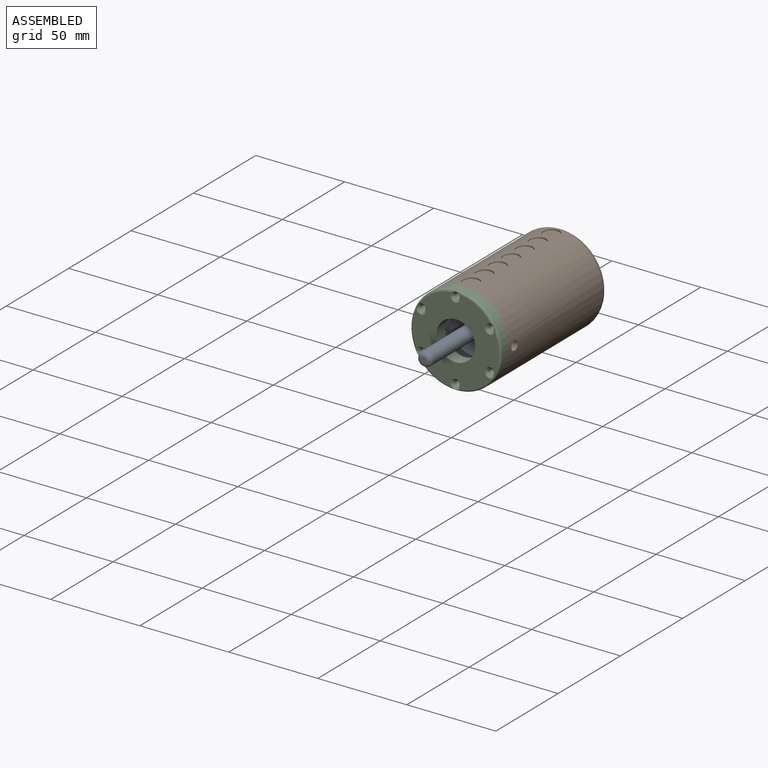
[diagram: assembled view]
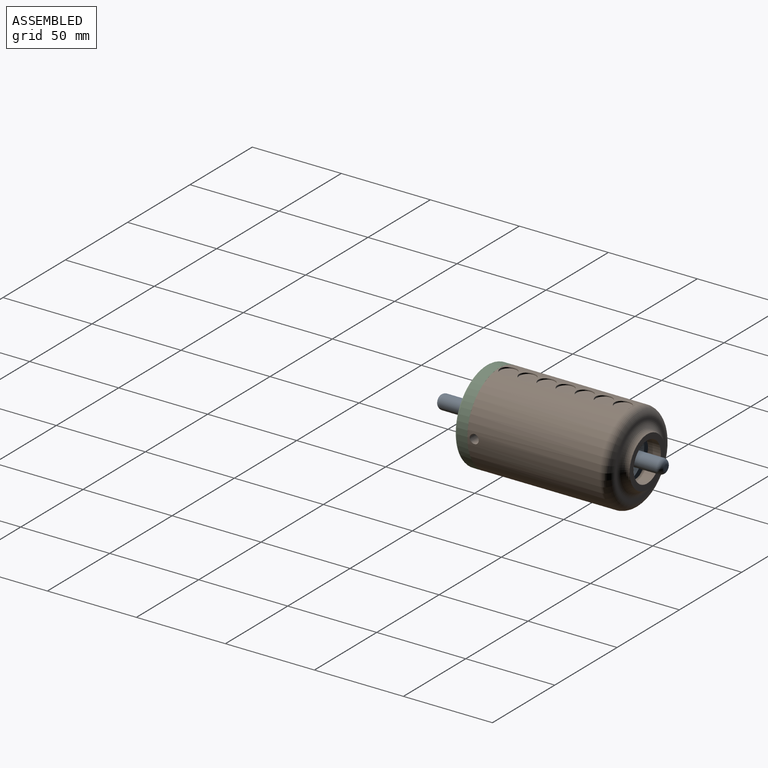
[diagram: assembled view, second angle]
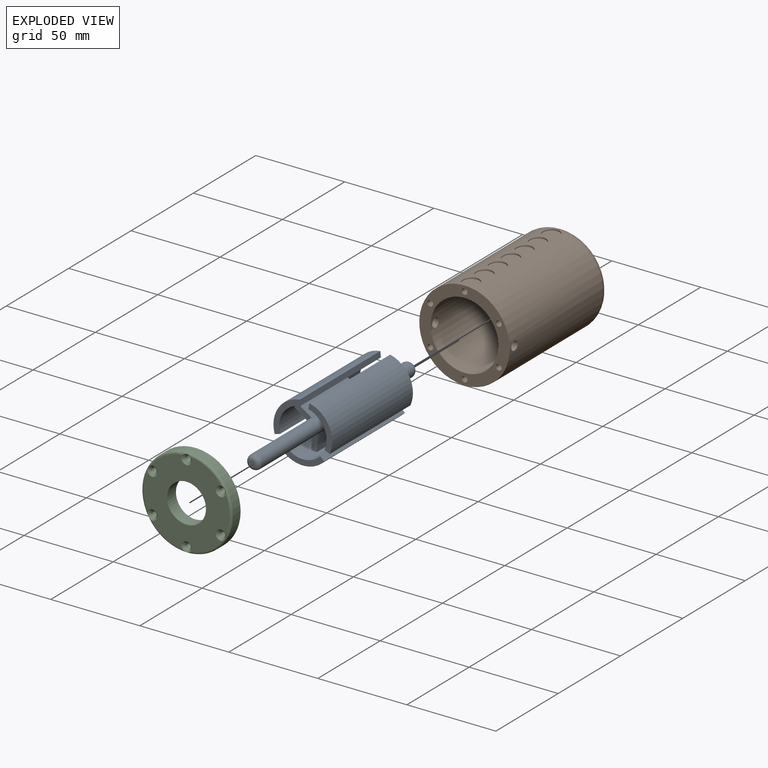
[diagram: exploded view]
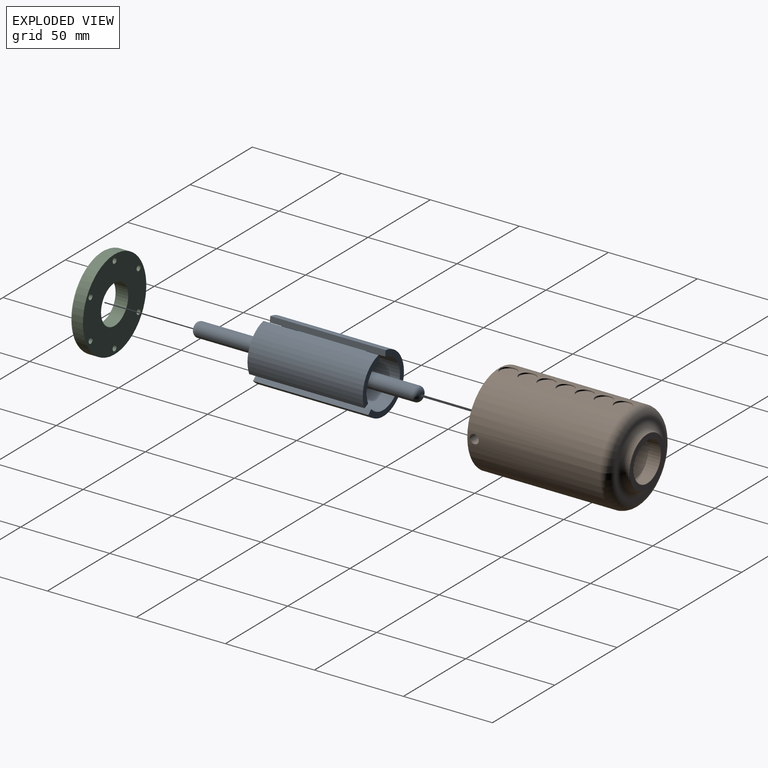
[diagram: exploded view, second angle]
ASSEMBLY  parts=3 mates=2
PART A: 35 faces, bbox 33x127x32.8 mm
  f0: plane 64.77x2.44mm, normal (0.64,0,-0.77), area 205.6mm2, adj f1,f3,f25,f31
  f1: cylinder r=16.51mm len=64.77mm, axis (0,1,0), area 1877mm2, adj f0,f2,f25,f31
  f2: plane 64.77x2.44mm, normal (-0.64,0,-0.77), area 205.6mm2, adj f1,f3,f25,f31
  f3: cylinder r=13.33mm len=64.77mm, axis (0,1,0), area 1394.8mm2, adj f0,f2,f14,f16,f19,f20,f25,f31
  f4: plane 64.77x2.98mm, normal (0.35,0,0.94), area 205.6mm2, adj f5,f7,f27,f30
  f5: cylinder r=16.51mm len=64.77mm, axis (0,1,0), area 1877mm2, adj f4,f6,f27,f30
  f6: plane 64.77x3.13mm, normal (0.99,0,-0.17), area 205.6mm2, adj f5,f7,f27,f30
  f7: cylinder r=13.33mm len=64.77mm, axis (0,1,0), area 1394.8mm2, adj f4,f6,f12,f15,f21,f22,f27,f30
  f8: cylinder r=13.33mm len=64.77mm, axis (0,1,0), area 1394.8mm2, adj f9,f11,f13,f17,f18,f24,f26,f29
  f9: plane 64.77x3.13mm, normal (-0.99,0,-0.17), area 205.6mm2, adj f8,f10,f26,f29
  f10: cylinder r=16.51mm len=64.77mm, axis (0,1,0), area 1877mm2, adj f9,f11,f26,f29
  f11: plane 64.77x2.98mm, normal (-0.35,0,0.94), area 205.6mm2, adj f8,f10,f26,f29
  f12: plane 9.87x7.53mm, normal (0,1,0), area 29.9mm2, adj f7,f21,f22,f23
  f13: plane 9.87x7.53mm, normal (0,1,0), area 29.9mm2, adj f8,f18,f23,f24
  f14: plane 9.66x3.18mm, normal (0,-1,0), area 29.9mm2, adj f3,f19,f20,f23
  f15: plane 9.87x7.53mm, normal (0,-1,0), area 29.9mm2, adj f7,f21,f22,f23
  f16: plane 9.66x3.18mm, normal (0,1,0), area 29.9mm2, adj f3,f19,f20,f23
  f17: plane 9.87x7.53mm, normal (0,-1,0), area 29.9mm2, adj f8,f18,f23,f24
  f18: plane 38.1x8.29mm, normal (0.5,0,0.87), area 364.6mm2, adj f8,f13,f17,f23
  f19: plane 38.1x9.57mm, normal (1,0,0), area 364.6mm2, adj f3,f14,f16,f23
  f20: plane 38.1x9.57mm, normal (-1,0,0), area 364.6mm2, adj f3,f14,f16,f23
  f21: plane 38.1x8.29mm, normal (-0.5,0,0.87), area 364.6mm2, adj f7,f12,f15,f23
  f22: plane 38.1x8.29mm, normal (0.5,0,-0.87), area 364.6mm2, adj f7,f12,f15,f23
  f23: cylinder r=4mm len=121.92mm, axis (0,1,0), area 2691mm2, adj f12,f13,f14,f15,f16,f17,f18,f19
  f24: plane 38.1x8.29mm, normal (-0.5,0,-0.87), area 364.6mm2, adj f8,f13,f17,f23
  f25: plane 25.4x7.99mm, normal (0,-1,0), area 83.2mm2, adj f0,f1,f2,f3
  f26: plane 22x14.26mm, normal (0,-1,0), area 83.2mm2, adj f8,f9,f10,f11
  f27: plane 22x14.26mm, normal (0,-1,0), area 83.2mm2, adj f4,f5,f6,f7
  f28: plane 2.92x2.92mm, normal (0,-1,0), area 6.7mm2, adj f34
  f29: plane 22x14.26mm, normal (0,1,0), area 83.2mm2, adj f8,f9,f10,f11
  f30: plane 22x14.26mm, normal (0,1,0), area 83.2mm2, adj f4,f5,f6,f7
  f31: plane 25.4x7.99mm, normal (0,1,0), area 83.2mm2, adj f0,f1,f2,f3
  f32: plane 2.92x2.92mm, normal (0,1,0), area 6.7mm2, adj f33
  f33: torus R=1.46mm, axis (0,1,0), area 77.1mm2, adj f23,f32
  f34: torus R=1.46mm, axis (0,-1,0), area 77.1mm2, adj f23,f28
PART B: 51 faces, bbox 55x84.5x55 mm
  f0: cylinder r=25.4mm len=74.3mm, axis (0,-1,0), area 10862.1mm2, adj f6,f8,f21,f23,f25,f27,f29,f31
  f1: plane 38.1x38.1mm, normal (0,-1,0), area 765.3mm2, adj f2,f5
  f2: cylinder r=10.92mm len=21.84mm, axis (0,1,0), area 488.1mm2, adj f1,f3
  f3: plane 28.19x28.19mm, normal (0,1,0), area 249.6mm2, adj f2,f7
  f4: plane 40.64x40.64mm, normal (0,1,0), area 157.5mm2, adj f7,f8
  f5: cylinder r=19.05mm len=76.2mm, axis (0,1,0), area 9080.1mm2, adj f1,f6,f49,f50
  f6: plane 50.8x50.8mm, normal (0,-1,0), area 839.2mm2, adj f0,f5,f9,f11,f13,f15,f17,f19
  f7: torus R=19.05mm, axis (0,-1,0), area 691.3mm2, adj f3,f4
  f8: torus R=20.32mm, axis (0,-1,0), area 1180.9mm2, adj f0,f4
  f9: cylinder r=1.59mm len=18.29mm, axis (0,-1,0), area 182.4mm2, adj f6,f10
  f10: plane 3.18x3.18mm, normal (0,-1,0), area 7.9mm2, adj f9
  f11: cylinder r=1.59mm len=18.29mm, axis (0,-1,0), area 182.4mm2, adj f6,f12
  f12: plane 3.18x3.18mm, normal (0,-1,0), area 7.9mm2, adj f11
  f13: cylinder r=1.59mm len=18.29mm, axis (0,-1,0), area 182.4mm2, adj f6,f14
  f14: plane 3.18x3.18mm, normal (0,-1,0), area 7.9mm2, adj f13
  f15: cylinder r=1.59mm len=18.29mm, axis (0,-1,0), area 182.4mm2, adj f6,f16
  f16: plane 3.18x3.18mm, normal (0,-1,0), area 7.9mm2, adj f15
  f17: cylinder r=1.59mm len=18.29mm, axis (0,-1,0), area 182.4mm2, adj f6,f18
  f18: plane 3.18x3.18mm, normal (0,-1,0), area 7.9mm2, adj f17
  f19: cylinder r=1.59mm len=18.29mm, axis (0,-1,0), area 182.4mm2, adj f6,f20
  f20: plane 3.18x3.18mm, normal (0,-1,0), area 7.9mm2, adj f19
  f21: cylinder r=4.65mm len=9.29mm, axis (0,0,1), area 20.5mm2, adj f0,f22
  f22: plane 9.29x9.29mm, normal (0,0,1), area 67.8mm2, adj f21
  f23: cylinder r=4.65mm len=9.29mm, axis (0,0,1), area 20.5mm2, adj f0,f24
  f24: plane 9.29x9.29mm, normal (0,0,1), area 67.8mm2, adj f23
  f25: cylinder r=4.65mm len=9.29mm, axis (0,0,1), area 20.5mm2, adj f0,f26
  f26: plane 9.29x9.29mm, normal (0,0,1), area 67.8mm2, adj f25
  f27: cylinder r=4.65mm len=9.29mm, axis (0,0,1), area 20.5mm2, adj f0,f28
  f28: plane 9.29x9.29mm, normal (0,0,1), area 67.8mm2, adj f27
  f29: cylinder r=4.65mm len=9.29mm, axis (0,0,1), area 20.5mm2, adj f0,f30
  f30: plane 9.29x9.29mm, normal (0,0,1), area 67.8mm2, adj f29
  f31: cylinder r=4.65mm len=9.29mm, axis (0,0,1), area 20.5mm2, adj f0,f32
  f32: plane 9.29x9.29mm, normal (0,0,1), area 67.8mm2, adj f31
  f33: cylinder r=4.65mm len=9.29mm, axis (0,0,1), area 20.5mm2, adj f0,f34
  f34: plane 9.29x9.29mm, normal (0,0,1), area 67.8mm2, adj f33
  f35: cylinder r=4.65mm len=9.29mm, axis (0,0,-1), area 20.5mm2, adj f0,f36
  f36: plane 9.29x9.29mm, normal (0,0,-1), area 67.8mm2, adj f35
  f37: cylinder r=4.65mm len=9.29mm, axis (0,0,-1), area 20.5mm2, adj f0,f38
  f38: plane 9.29x9.29mm, normal (0,0,-1), area 67.8mm2, adj f37
  f39: cylinder r=4.65mm len=9.29mm, axis (0,0,-1), area 20.5mm2, adj f0,f40
  f40: plane 9.29x9.29mm, normal (0,0,-1), area 67.8mm2, adj f39
  f41: cylinder r=4.65mm len=9.29mm, axis (0,0,-1), area 20.5mm2, adj f0,f42
  f42: plane 9.29x9.29mm, normal (0,0,-1), area 67.8mm2, adj f41
  f43: cylinder r=4.65mm len=9.29mm, axis (0,0,-1), area 20.5mm2, adj f0,f44
  f44: plane 9.29x9.29mm, normal (0,0,-1), area 67.8mm2, adj f43
  f45: cylinder r=4.65mm len=9.29mm, axis (0,0,-1), area 20.5mm2, adj f0,f46
  f46: plane 9.29x9.29mm, normal (0,0,-1), area 67.8mm2, adj f45
  f47: cylinder r=4.65mm len=9.29mm, axis (0,0,-1), area 20.5mm2, adj f0,f48
  f48: plane 9.29x9.29mm, normal (0,0,-1), area 67.8mm2, adj f47
  f49: cylinder r=2.54mm len=6.52mm, axis (1,0,0), area 101.7mm2, adj f0,f5
  f50: cylinder r=2.54mm len=6.52mm, axis (1,0,0), area 101.7mm2, adj f0,f5
PART C: 17 faces, bbox 55x7.1x55 mm
  f0: cylinder r=25.4mm len=50.8mm, axis (0,1,0), area 932.3mm2, adj f3,f16
  f1: cylinder r=10.92mm len=21.84mm, axis (0,1,0), area 488.1mm2, adj f2,f3
  f2: plane 48.26x48.06mm, normal (0,-1,0), area 1318.3mm2, adj f1,f10,f11,f12,f13,f14,f15,f16
  f3: plane 50.8x50.8mm, normal (0,1,0), area 1604.6mm2, adj f0,f1,f4,f5,f6,f7,f8,f9
  f4: cylinder r=1.59mm len=5.84mm, axis (0,-1,0), area 58.3mm2, adj f3,f15
  f5: cylinder r=1.59mm len=5.84mm, axis (0,-1,0), area 58.3mm2, adj f3,f10
  f6: cylinder r=1.59mm len=5.84mm, axis (0,-1,0), area 58.3mm2, adj f3,f11
  f7: cylinder r=1.59mm len=5.84mm, axis (0,-1,0), area 58.3mm2, adj f3,f12
  f8: cylinder r=1.59mm len=5.84mm, axis (0,-1,0), area 58.3mm2, adj f3,f13
  f9: cylinder r=1.59mm len=5.84mm, axis (0,-1,0), area 58.3mm2, adj f3,f14
  f10: cone r=1.59mm half-angle=45deg, axis (0,-1,0), area 24.2mm2, adj f2,f5,f16
  f11: cone r=1.59mm half-angle=45deg, axis (0,-1,0), area 24.3mm2, adj f2,f6,f16
  f12: cone r=1.59mm half-angle=45deg, axis (0,-1,0), area 24.2mm2, adj f2,f7,f16
  f13: cone r=1.59mm half-angle=45deg, axis (0,-1,0), area 24.2mm2, adj f2,f8,f16
  f14: cone r=1.59mm half-angle=45deg, axis (0,-1,0), area 24.2mm2, adj f2,f9,f16
  f15: cone r=1.59mm half-angle=45deg, axis (0,-1,0), area 24.2mm2, adj f2,f4,f16
  f16: torus R=24.13mm, axis (0,-1,0), area 298mm2, adj f0,f2,f10,f11,f12,f13,f14,f15
PLACE A rot(axis=(0.47,0,-0.88),180deg) t=(-24.97,-17.14,-2.13)mm
PLACE B t=(-24.97,29.48,-2.13)mm fixed
PLACE C t=(-24.97,29.48,-2.13)mm
MATE cylindrical A.f1 <-> B.f0  axis (0,-1,0) through (-24.97,-23.49,-2.13)mm
MATE fastened C.f0 <-> B.f0  axis (0,1,0) through (-24.97,-53.83,-2.13)mm
